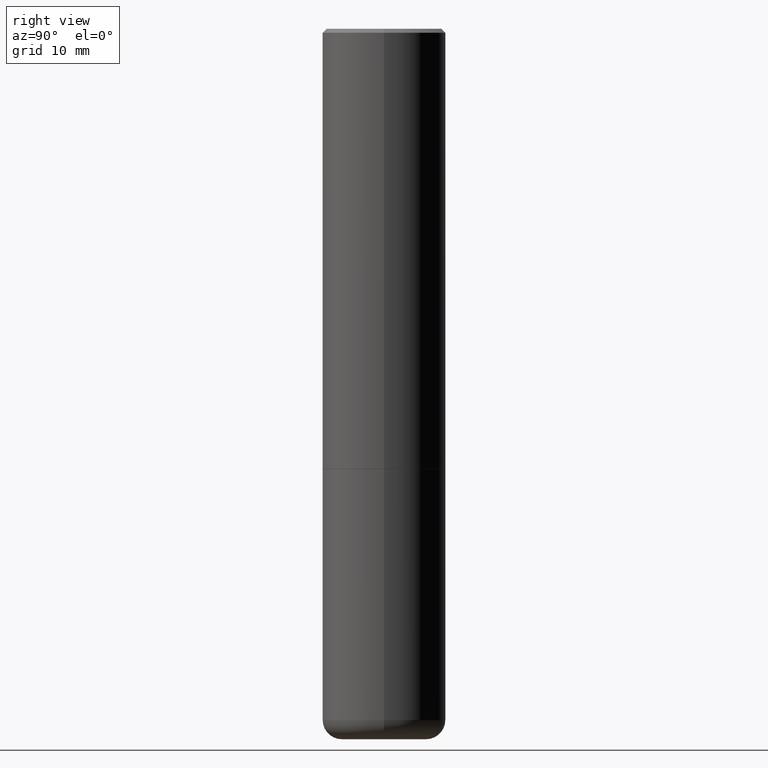
[diagram: clean part render]
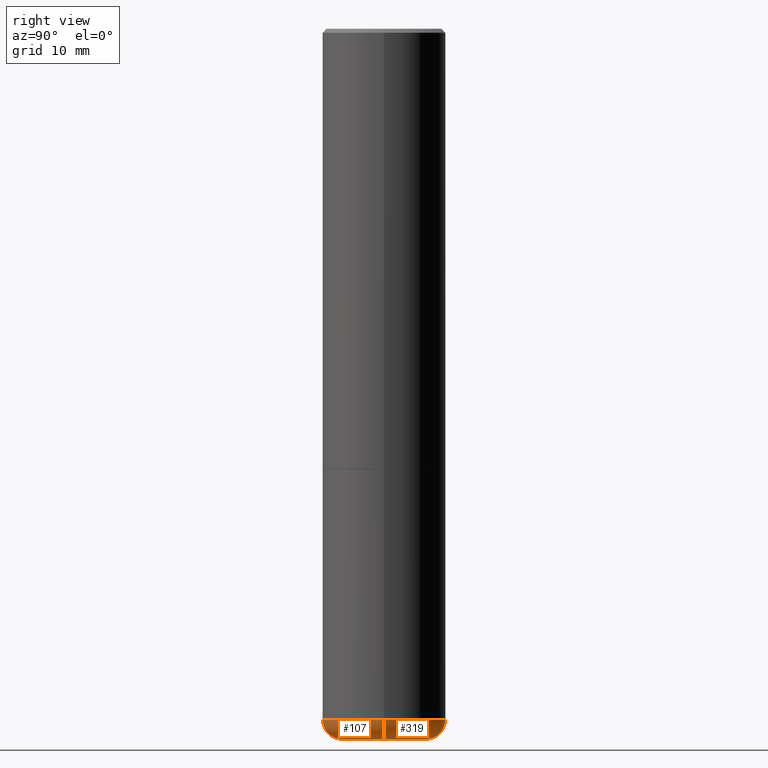
[diagram: same view with one multi-face feature highlighted, each face labeled with its STEP entity id]
A machine part, right view. The highlighted faces form ONE feature: a constant-radius fillet chain: 2 tangent blend faces with common blend radius 2.4994 mm. The faces share edges in the B-rep.
Their STEP definitions:
[1] entity #319 (Torus):
#6 = VERTEX_POINT ( 'NONE', #367 ) ;
#20 = DIRECTION ( 'NONE',  ( 7.105427357601001859E-15, 1.000000000000000000, -3.491481338843145583E-15 ) ) ;
#26 = DIRECTION ( 'NONE',  ( -6.982962677686266711E-15, -1.000000000000000000, 3.491481338843145583E-15 ) ) ;
#38 = AXIS2_PLACEMENT_3D ( 'NONE', #155, #189, #165 ) ;
#39 = ORIENTED_EDGE ( 'NONE', *, *, #293, .F. ) ;
#44 = CIRCLE ( 'NONE', #364, 0.09839999999999986258 ) ;
#89 = DIRECTION ( 'NONE',  ( 1.000000000000000000, -6.982962677686266711E-15, 4.883557194083112901E-29 ) ) ;
#130 = FACE_OUTER_BOUND ( 'NONE', #321, .T. ) ;
#133 = TOROIDAL_SURFACE ( 'NONE', #292, 0.2165500000000000203, 0.09839999999999984870 ) ;
#151 = AXIS2_PLACEMENT_3D ( 'NONE', #372, #20, #375 ) ;
#152 = CARTESIAN_POINT ( 'NONE',  ( -0.2165500000000000203, -1.058609720713632398E-14, -3.621999999999999442 ) ) ;
#155 = CARTESIAN_POINT ( 'NONE',  ( 8.616853885473946211E-29, -1.230258364554770589E-14, -3.523599999999999621 ) ) ;
#165 = DIRECTION ( 'NONE',  ( 1.000000000000000000, -6.982962677686269866E-15, 0.000000000000000000 ) ) ;
#175 = VERTEX_POINT ( 'NONE', #152 ) ;
#184 = CIRCLE ( 'NONE', #151, 0.09839999999999986258 ) ;
#186 = CARTESIAN_POINT ( 'NONE',  ( -0.3149499999999999522, -1.006472929927126990E-14, -3.523599999999999621 ) ) ;
#187 = DIRECTION ( 'NONE',  ( 1.000000000000000000, -6.982962677686271444E-15, 0.000000000000000000 ) ) ;
#189 = DIRECTION ( 'NONE',  ( -2.445468806185136597E-29, 3.491481338843145583E-15, 1.000000000000000000 ) ) ;
#210 = EDGE_CURVE ( 'NONE', #175, #393, #184, .T. ) ;
#257 = VERTEX_POINT ( 'NONE', #310 ) ;
#260 = ORIENTED_EDGE ( 'NONE', *, *, #210, .T. ) ;
#264 = AXIS2_PLACEMENT_3D ( 'NONE', #351, #382, #357 ) ;
#265 = DIRECTION ( 'NONE',  ( -2.445468806185136597E-29, 3.491481338843145583E-15, 1.000000000000000000 ) ) ;
#279 = EDGE_CURVE ( 'NONE', #257, #175, #374, .T. ) ;
#286 = CARTESIAN_POINT ( 'NONE',  ( 8.616853885473946211E-29, -1.230258364554770589E-14, -3.523599999999999621 ) ) ;
#292 = AXIS2_PLACEMENT_3D ( 'NONE', #286, #265, #89 ) ;
#293 = EDGE_CURVE ( 'NONE', #6, #393, #305, .T. ) ;
#300 = EDGE_CURVE ( 'NONE', #257, #6, #44, .T. ) ;
#305 = CIRCLE ( 'NONE', #38, 0.3149500000000000077 ) ;
#310 = CARTESIAN_POINT ( 'NONE',  ( 0.2165500000000000203, -1.415830597714283123E-14, -3.621999999999999442 ) ) ;
#319 = ADVANCED_FACE ( 'NONE', ( #130 ), #133, .T. ) ;
#321 = EDGE_LOOP ( 'NONE', ( #387, #260, #39, #418 ) ) ;
#351 = CARTESIAN_POINT ( 'NONE',  ( 8.857488016002563354E-29, -1.264614540928987041E-14, -3.621999999999999442 ) ) ;
#357 = DIRECTION ( 'NONE',  ( 1.000000000000000000, -6.982962677686264344E-15, 0.000000000000000000 ) ) ;
#364 = AXIS2_PLACEMENT_3D ( 'NONE', #414, #26, #187 ) ;
#367 = CARTESIAN_POINT ( 'NONE',  ( 0.3149499999999999522, -1.450186774088499734E-14, -3.523599999999999621 ) ) ;
#372 = CARTESIAN_POINT ( 'NONE',  ( -0.2165500000000000203, -1.076390335125921037E-14, -3.523599999999999621 ) ) ;
#374 = CIRCLE ( 'NONE', #264, 0.2165500000000000203 ) ;
#375 = DIRECTION ( 'NONE',  ( -1.000000000000000000, 7.105427357601009747E-15, 0.000000000000000000 ) ) ;
#382 = DIRECTION ( 'NONE',  ( -2.445468806185136597E-29, 3.491481338843145583E-15, 1.000000000000000000 ) ) ;
#387 = ORIENTED_EDGE ( 'NONE', *, *, #279, .T. ) ;
#393 = VERTEX_POINT ( 'NONE', #186 ) ;
#414 = CARTESIAN_POINT ( 'NONE',  ( 0.2165500000000000203, -1.381474421340066671E-14, -3.523599999999999621 ) ) ;
#418 = ORIENTED_EDGE ( 'NONE', *, *, #300, .F. ) ;
[2] entity #107 (Torus):
#6 = VERTEX_POINT ( 'NONE', #367 ) ;
#10 = AXIS2_PLACEMENT_3D ( 'NONE', #270, #41, #399 ) ;
#20 = DIRECTION ( 'NONE',  ( 7.105427357601001859E-15, 1.000000000000000000, -3.491481338843145583E-15 ) ) ;
#26 = DIRECTION ( 'NONE',  ( -6.982962677686266711E-15, -1.000000000000000000, 3.491481338843145583E-15 ) ) ;
#36 = ORIENTED_EDGE ( 'NONE', *, *, #300, .T. ) ;
#41 = DIRECTION ( 'NONE',  ( -2.445468806185136597E-29, 3.491481338843145583E-15, 1.000000000000000000 ) ) ;
#44 = CIRCLE ( 'NONE', #364, 0.09839999999999986258 ) ;
#107 = ADVANCED_FACE ( 'NONE', ( #236 ), #297, .T. ) ;
#112 = DIRECTION ( 'NONE',  ( -2.445468806185136597E-29, 3.491481338843145583E-15, 1.000000000000000000 ) ) ;
#151 = AXIS2_PLACEMENT_3D ( 'NONE', #372, #20, #375 ) ;
#152 = CARTESIAN_POINT ( 'NONE',  ( -0.2165500000000000203, -1.058609720713632398E-14, -3.621999999999999442 ) ) ;
#161 = ORIENTED_EDGE ( 'NONE', *, *, #210, .F. ) ;
#175 = VERTEX_POINT ( 'NONE', #152 ) ;
#183 = CARTESIAN_POINT ( 'NONE',  ( 8.616853885473946211E-29, -1.230258364554770589E-14, -3.523599999999999621 ) ) ;
#184 = CIRCLE ( 'NONE', #151, 0.09839999999999986258 ) ;
#186 = CARTESIAN_POINT ( 'NONE',  ( -0.3149499999999999522, -1.006472929927126990E-14, -3.523599999999999621 ) ) ;
#187 = DIRECTION ( 'NONE',  ( 1.000000000000000000, -6.982962677686271444E-15, 0.000000000000000000 ) ) ;
#197 = EDGE_CURVE ( 'NONE', #393, #6, #239, .T. ) ;
#210 = EDGE_CURVE ( 'NONE', #175, #393, #184, .T. ) ;
#215 = AXIS2_PLACEMENT_3D ( 'NONE', #183, #112, #247 ) ;
#227 = AXIS2_PLACEMENT_3D ( 'NONE', #255, #241, #366 ) ;
#236 = FACE_OUTER_BOUND ( 'NONE', #253, .T. ) ;
#239 = CIRCLE ( 'NONE', #215, 0.3149500000000000077 ) ;
#241 = DIRECTION ( 'NONE',  ( -2.445468806185136597E-29, 3.491481338843145583E-15, 1.000000000000000000 ) ) ;
#247 = DIRECTION ( 'NONE',  ( 1.000000000000000000, -6.982962677686269866E-15, 0.000000000000000000 ) ) ;
#253 = EDGE_LOOP ( 'NONE', ( #161, #289, #36, #301 ) ) ;
#255 = CARTESIAN_POINT ( 'NONE',  ( 8.857488016002563354E-29, -1.264614540928987041E-14, -3.621999999999999442 ) ) ;
#257 = VERTEX_POINT ( 'NONE', #310 ) ;
#270 = CARTESIAN_POINT ( 'NONE',  ( 8.616853885473946211E-29, -1.230258364554770589E-14, -3.523599999999999621 ) ) ;
#289 = ORIENTED_EDGE ( 'NONE', *, *, #405, .T. ) ;
#297 = TOROIDAL_SURFACE ( 'NONE', #10, 0.2165500000000000203, 0.09839999999999984870 ) ;
#300 = EDGE_CURVE ( 'NONE', #257, #6, #44, .T. ) ;
#301 = ORIENTED_EDGE ( 'NONE', *, *, #197, .F. ) ;
#310 = CARTESIAN_POINT ( 'NONE',  ( 0.2165500000000000203, -1.415830597714283123E-14, -3.621999999999999442 ) ) ;
#364 = AXIS2_PLACEMENT_3D ( 'NONE', #414, #26, #187 ) ;
#366 = DIRECTION ( 'NONE',  ( 1.000000000000000000, -6.982962677686264344E-15, 0.000000000000000000 ) ) ;
#367 = CARTESIAN_POINT ( 'NONE',  ( 0.3149499999999999522, -1.450186774088499734E-14, -3.523599999999999621 ) ) ;
#372 = CARTESIAN_POINT ( 'NONE',  ( -0.2165500000000000203, -1.076390335125921037E-14, -3.523599999999999621 ) ) ;
#375 = DIRECTION ( 'NONE',  ( -1.000000000000000000, 7.105427357601009747E-15, 0.000000000000000000 ) ) ;
#393 = VERTEX_POINT ( 'NONE', #186 ) ;
#397 = CIRCLE ( 'NONE', #227, 0.2165500000000000203 ) ;
#399 = DIRECTION ( 'NONE',  ( 1.000000000000000000, -6.982962677686266711E-15, 4.883557194083112901E-29 ) ) ;
#405 = EDGE_CURVE ( 'NONE', #175, #257, #397, .T. ) ;
#414 = CARTESIAN_POINT ( 'NONE',  ( 0.2165500000000000203, -1.381474421340066671E-14, -3.523599999999999621 ) ) ;